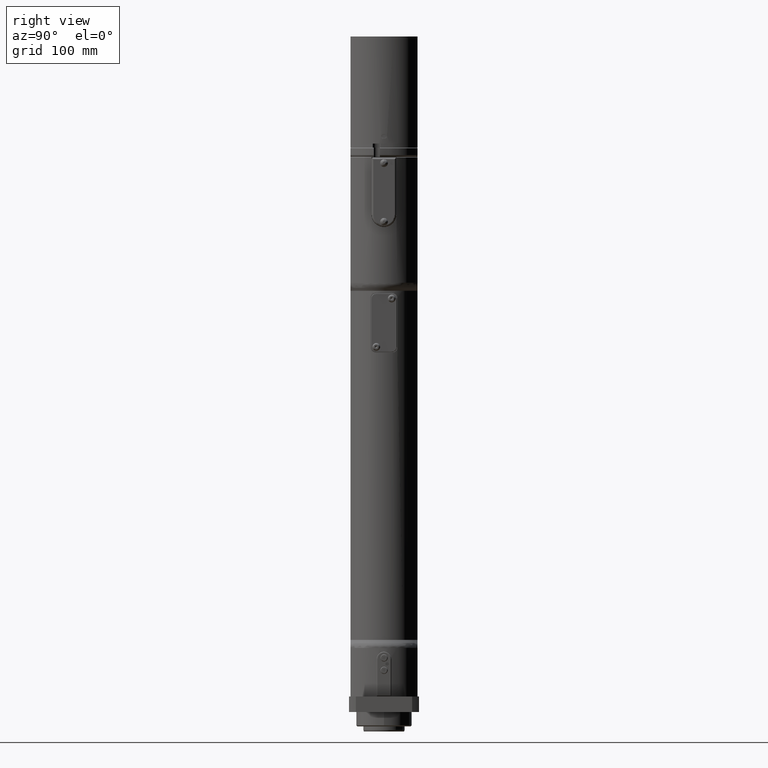
[diagram: clean part render]
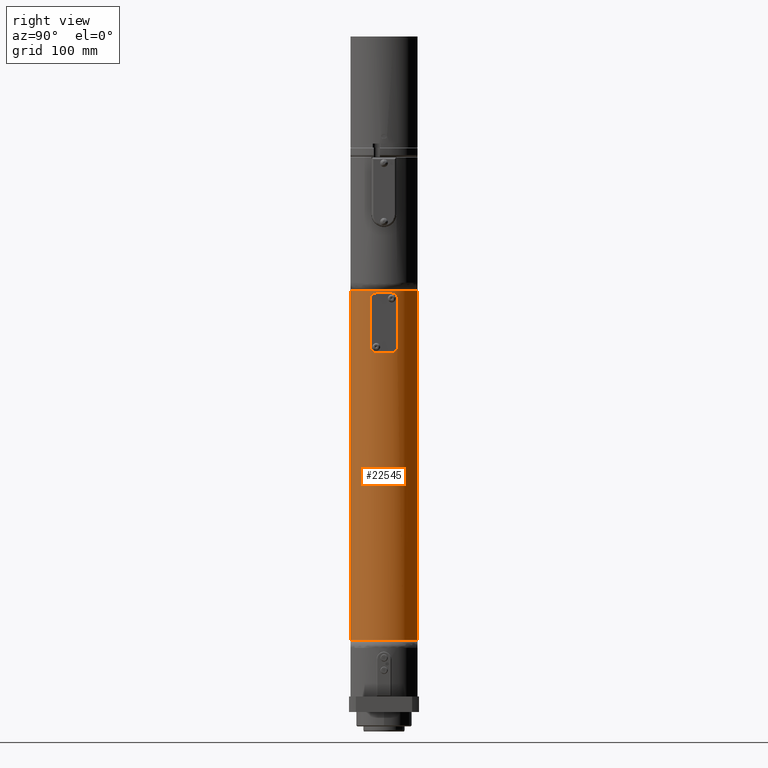
[diagram: same view with one face highlighted and labeled with its STEP entity id]
A machine part, right view. The second image highlights one B-rep face of the part: STEP entity #22545.
In plain terms, the highlighted cylindrical surface (edge-blend (fillet) strip) has radius 34 mm, axis along (0, 0, 1).
Its self-contained STEP definition (entity closure, byte-faithful):
#507=FACE_BOUND('',#3767,.T.);
#667=B_SPLINE_CURVE_WITH_KNOTS('',3,(#32751,#32752,#32753,#32754,#32755,
#32756,#32757,#32758,#32759,#32760),.UNSPECIFIED.,.F.,.F.,(4,2,2,2,4),(-0.772100928863819,
-0.574810460380427,-0.377519991897035,-0.188759995948518,0.),
 .UNSPECIFIED.);
#668=B_SPLINE_CURVE_WITH_KNOTS('',3,(#32768,#32769,#32770,#32771,#32772,
#32773,#32774,#32775,#32776,#32777),.UNSPECIFIED.,.F.,.F.,(4,2,2,2,4),(0.,
0.188759995948518,0.377519991897035,0.574810460380427,0.772100928863819),
 .UNSPECIFIED.);
#669=B_SPLINE_CURVE_WITH_KNOTS('',3,(#32781,#32782,#32783,#32784,#32785,
#32786,#32787,#32788,#32789,#32790),.UNSPECIFIED.,.F.,.F.,(4,2,2,2,4),(1.53168907801242,
1.72044907396094,1.90920906990946,2.10649953839285,2.30379000687624),
 .UNSPECIFIED.);
#670=B_SPLINE_CURVE_WITH_KNOTS('',3,(#32798,#32799,#32800,#32801,#32802,
#32803,#32804,#32805,#32806,#32807),.UNSPECIFIED.,.F.,.F.,(4,2,2,2,4),(0.759588469608742,
0.956878938092134,1.15416940657553,1.34292940252404,1.53168939847256),
 .UNSPECIFIED.);
#1142=CYLINDRICAL_SURFACE('',#24075,34.);
#1524=CIRCLE('',#24020,34.);
#1525=CIRCLE('',#24028,34.);
#1545=CIRCLE('',#24072,34.);
#1546=CIRCLE('',#24074,34.);
#2448=FACE_OUTER_BOUND('',#3766,.T.);
#3766=EDGE_LOOP('',(#14579,#14580,#14581,#14582));
#3767=EDGE_LOOP('',(#14583,#14584,#14585,#14586,#14587,#14588,#14589,#14590));
#5196=LINE('',#32495,#6978);
#5204=LINE('',#32583,#6986);
#5241=LINE('',#32764,#7023);
#5245=LINE('',#32794,#7027);
#6978=VECTOR('',#26270,10.);
#6986=VECTOR('',#26292,10.);
#7023=VECTOR('',#26399,10.);
#7027=VECTOR('',#26409,10.);
#8835=VERTEX_POINT('',#32490);
#8836=VERTEX_POINT('',#32494);
#8850=VERTEX_POINT('',#32578);
#8851=VERTEX_POINT('',#32582);
#8888=VERTEX_POINT('',#32744);
#8889=VERTEX_POINT('',#32745);
#8890=VERTEX_POINT('',#32750);
#8891=VERTEX_POINT('',#32763);
#8892=VERTEX_POINT('',#32767);
#8893=VERTEX_POINT('',#32780);
#8894=VERTEX_POINT('',#32793);
#8895=VERTEX_POINT('',#32797);
#10961=EDGE_CURVE('',#8836,#8835,#5196,.T.);
#10981=EDGE_CURVE('',#8851,#8850,#5204,.T.);
#11038=EDGE_CURVE('',#8888,#8889,#1524,.T.);
#11041=EDGE_CURVE('',#8889,#8890,#667,.T.);
#11043=EDGE_CURVE('',#8890,#8891,#5241,.T.);
#11045=EDGE_CURVE('',#8891,#8892,#668,.T.);
#11047=EDGE_CURVE('',#8893,#8888,#669,.T.);
#11049=EDGE_CURVE('',#8894,#8893,#5245,.T.);
#11051=EDGE_CURVE('',#8895,#8894,#670,.T.);
#11053=EDGE_CURVE('',#8892,#8895,#1525,.T.);
#11103=EDGE_CURVE('',#8851,#8835,#1545,.T.);
#11104=EDGE_CURVE('',#8836,#8850,#1546,.T.);
#14579=ORIENTED_EDGE('',*,*,#10961,.T.);
#14580=ORIENTED_EDGE('',*,*,#11103,.F.);
#14581=ORIENTED_EDGE('',*,*,#10981,.T.);
#14582=ORIENTED_EDGE('',*,*,#11104,.F.);
#14583=ORIENTED_EDGE('',*,*,#11053,.T.);
#14584=ORIENTED_EDGE('',*,*,#11051,.T.);
#14585=ORIENTED_EDGE('',*,*,#11049,.T.);
#14586=ORIENTED_EDGE('',*,*,#11047,.T.);
#14587=ORIENTED_EDGE('',*,*,#11038,.T.);
#14588=ORIENTED_EDGE('',*,*,#11041,.T.);
#14589=ORIENTED_EDGE('',*,*,#11043,.T.);
#14590=ORIENTED_EDGE('',*,*,#11045,.T.);
#22545=ADVANCED_FACE('',(#2448,#507),#1142,.T.);
#24020=AXIS2_PLACEMENT_3D('',#32746,#26390,#26391);
#24028=AXIS2_PLACEMENT_3D('',#32810,#26416,#26417);
#24072=AXIS2_PLACEMENT_3D('',#32954,#26528,#26529);
#24074=AXIS2_PLACEMENT_3D('',#32956,#26532,#26533);
#24075=AXIS2_PLACEMENT_3D('',#32957,#26534,#26535);
#26270=DIRECTION('',(0.,0.,1.));
#26292=DIRECTION('',(0.,0.,-1.));
#26390=DIRECTION('center_axis',(0.,0.,-1.));
#26391=DIRECTION('ref_axis',(-1.,0.,0.));
#26399=DIRECTION('',(0.,0.,1.));
#26409=DIRECTION('',(0.,0.,-1.));
#26416=DIRECTION('center_axis',(0.,0.,1.));
#26417=DIRECTION('ref_axis',(-1.,0.,0.));
#26528=DIRECTION('center_axis',(0.,0.,1.));
#26529=DIRECTION('ref_axis',(-1.,0.,0.));
#26532=DIRECTION('center_axis',(0.,0.,-1.));
#26533=DIRECTION('ref_axis',(-1.,0.,0.));
#26534=DIRECTION('center_axis',(0.,0.,1.));
#26535=DIRECTION('ref_axis',(1.,-1.65389215948551E-15,0.));
#32490=CARTESIAN_POINT('',(9.98749217771911,32.5,409.));
#32494=CARTESIAN_POINT('',(9.98749217771911,32.5,70.));
#32495=CARTESIAN_POINT('',(9.98749217771911,32.5,70.));
#32578=CARTESIAN_POINT('',(9.98749217771903,-32.5,70.));
#32582=CARTESIAN_POINT('',(9.98749217771903,-32.5,409.));
#32583=CARTESIAN_POINT('',(9.98749217771903,-32.5,70.));
#32744=CARTESIAN_POINT('',(33.0454232837166,8.,349.));
#32745=CARTESIAN_POINT('',(33.0454232837166,-8.,349.));
#32746=CARTESIAN_POINT('Origin',(0.,0.,349.));
#32750=CARTESIAN_POINT('',(31.41655614481,-13.,354.));
#32751=CARTESIAN_POINT('Ctrl Pts',(33.0454232837166,-8.00000000000001,349.));
#32752=CARTESIAN_POINT('Ctrl Pts',(32.8906856613767,-8.6391712785173,349.));
#32753=CARTESIAN_POINT('Ctrl Pts',(32.7052635615763,-9.3159418222046,349.129545442548));
#32754=CARTESIAN_POINT('Ctrl Pts',(32.325997565121,-10.5570316913719,349.650905969634));
#32755=CARTESIAN_POINT('Ctrl Pts',(32.1330572202445,-11.1216973112429,350.04255353652));
#32756=CARTESIAN_POINT('Ctrl Pts',(31.8168900309405,-11.9954968996403,350.932753850951));
#32757=CARTESIAN_POINT('Ctrl Pts',(31.670490360415,-12.3714684569533,351.485092093627));
#32758=CARTESIAN_POINT('Ctrl Pts',(31.4696109492567,-12.8738797601816,352.703932133173));
#32759=CARTESIAN_POINT('Ctrl Pts',(31.41655614481,-13.,353.370800013505));
#32760=CARTESIAN_POINT('Ctrl Pts',(31.41655614481,-13.,354.));
#32763=CARTESIAN_POINT('',(31.41655614481,-13.,402.));
#32764=CARTESIAN_POINT('',(31.41655614481,-13.,70.));
#32767=CARTESIAN_POINT('',(33.0454232837166,-8.,407.));
#32768=CARTESIAN_POINT('Ctrl Pts',(31.41655614481,-13.,402.));
#32769=CARTESIAN_POINT('Ctrl Pts',(31.41655614481,-13.,402.629199986495));
#32770=CARTESIAN_POINT('Ctrl Pts',(31.4696109492567,-12.8738797601816,403.296067866827));
#32771=CARTESIAN_POINT('Ctrl Pts',(31.670490360415,-12.3714684569533,404.514907906374));
#32772=CARTESIAN_POINT('Ctrl Pts',(31.8168900309405,-11.9954968996403,405.067246149049));
#32773=CARTESIAN_POINT('Ctrl Pts',(32.1330572202445,-11.1216973112429,405.95744646348));
#32774=CARTESIAN_POINT('Ctrl Pts',(32.325997565121,-10.5570316913719,406.349094030366));
#32775=CARTESIAN_POINT('Ctrl Pts',(32.7052635615763,-9.31594182220457,406.870454557452));
#32776=CARTESIAN_POINT('Ctrl Pts',(32.8906856613767,-8.6391712785173,407.));
#32777=CARTESIAN_POINT('Ctrl Pts',(33.0454232837166,-8.00000000000001,407.));
#32780=CARTESIAN_POINT('',(31.41655614481,13.,354.));
#32781=CARTESIAN_POINT('Ctrl Pts',(31.41655614481,13.,354.));
#32782=CARTESIAN_POINT('Ctrl Pts',(31.41655614481,13.,353.370800013505));
#32783=CARTESIAN_POINT('Ctrl Pts',(31.4696109492567,12.8738797601816,352.703932133173));
#32784=CARTESIAN_POINT('Ctrl Pts',(31.670490360415,12.3714684569533,351.485092093627));
#32785=CARTESIAN_POINT('Ctrl Pts',(31.8168900309405,11.9954968996403,350.932753850951));
#32786=CARTESIAN_POINT('Ctrl Pts',(32.1330572202445,11.1216973112429,350.04255353652));
#32787=CARTESIAN_POINT('Ctrl Pts',(32.325997565121,10.5570316913719,349.650905969634));
#32788=CARTESIAN_POINT('Ctrl Pts',(32.7052635615763,9.3159418222046,349.129545442548));
#32789=CARTESIAN_POINT('Ctrl Pts',(32.8906856613767,8.6391712785173,349.));
#32790=CARTESIAN_POINT('Ctrl Pts',(33.0454232837166,8.,349.));
#32793=CARTESIAN_POINT('',(31.41655614481,13.,402.));
#32794=CARTESIAN_POINT('',(31.41655614481,13.,70.));
#32797=CARTESIAN_POINT('',(33.0454232837166,8.,407.));
#32798=CARTESIAN_POINT('Ctrl Pts',(33.0454232837166,8.,407.));
#32799=CARTESIAN_POINT('Ctrl Pts',(32.8906856613767,8.6391712785173,407.));
#32800=CARTESIAN_POINT('Ctrl Pts',(32.7052635615763,9.31594182220457,406.870454557452));
#32801=CARTESIAN_POINT('Ctrl Pts',(32.325997565121,10.557031691372,406.349094030366));
#32802=CARTESIAN_POINT('Ctrl Pts',(32.1330572202445,11.1216973112429,405.95744646348));
#32803=CARTESIAN_POINT('Ctrl Pts',(31.8168900309405,11.9954968996403,405.067246149049));
#32804=CARTESIAN_POINT('Ctrl Pts',(31.670490360415,12.3714684569533,404.514907906374));
#32805=CARTESIAN_POINT('Ctrl Pts',(31.4696109492567,12.8738797601817,403.296067866827));
#32806=CARTESIAN_POINT('Ctrl Pts',(31.41655614481,13.,402.629199986495));
#32807=CARTESIAN_POINT('Ctrl Pts',(31.41655614481,13.,402.));
#32810=CARTESIAN_POINT('Origin',(0.,0.,407.));
#32954=CARTESIAN_POINT('Origin',(0.,0.,409.));
#32956=CARTESIAN_POINT('Origin',(0.,0.,70.));
#32957=CARTESIAN_POINT('Origin',(0.,0.,70.));